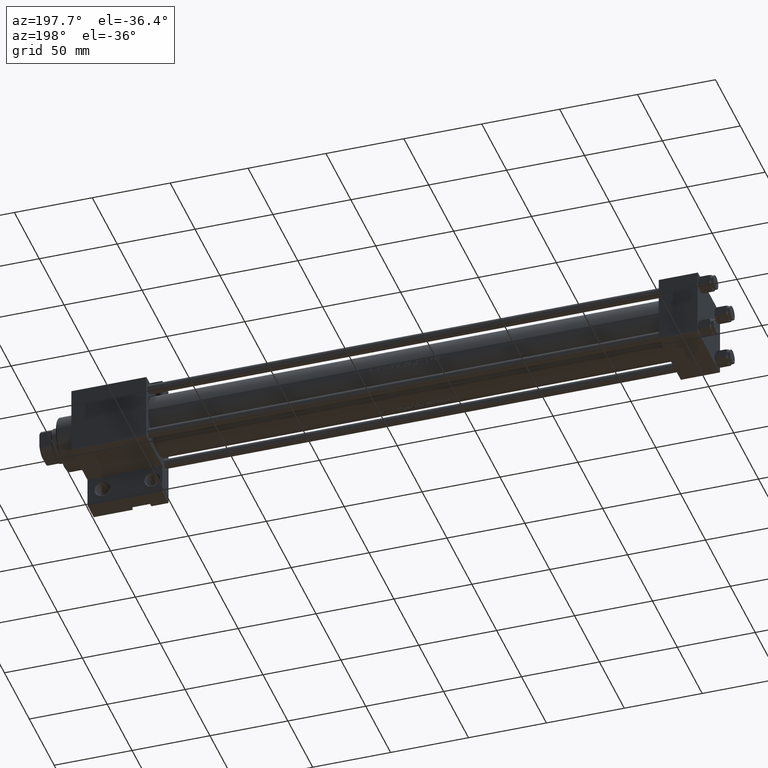
[diagram: clean part render]
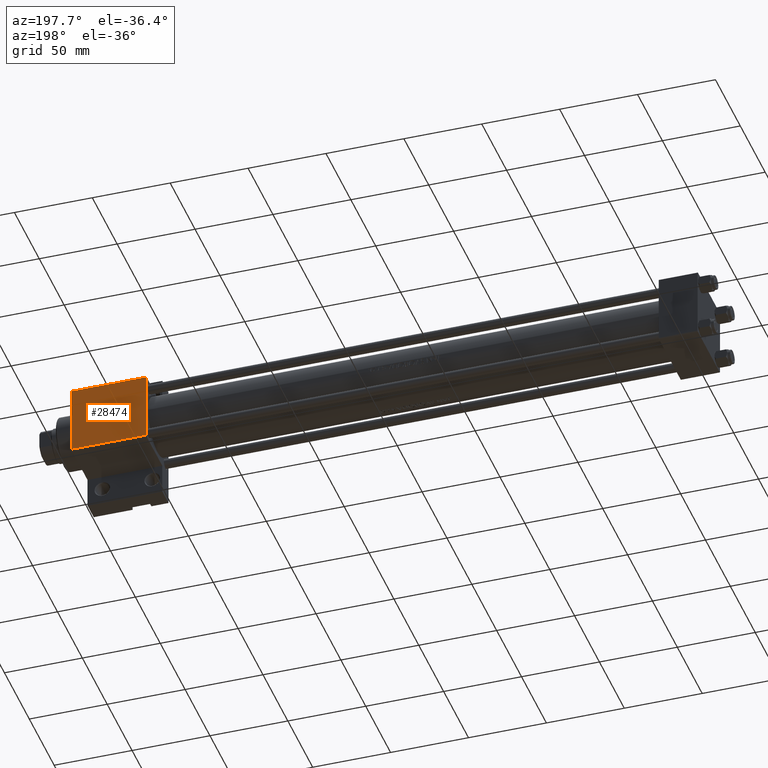
[diagram: same view with one face highlighted and labeled with its STEP entity id]
A machine part, auxiliary view. The second image highlights one B-rep face of the part: STEP entity #28474.
In plain terms, the highlighted planar face has unit normal (0, -1, -0).
Its self-contained STEP definition (entity closure, byte-faithful):
#106 = VERTEX_POINT ( 'NONE', #18790 ) ;
#172 = DIRECTION ( 'NONE',  ( -1.000000000000000000, 0.000000000000000000, 0.000000000000000000 ) ) ;
#437 = ORIENTED_EDGE ( 'NONE', *, *, #23605, .T. ) ;
#560 = VECTOR ( 'NONE', #2728, 1000.000000000000000 ) ;
#2728 = DIRECTION ( 'NONE',  ( 1.000000000000000000, 0.000000000000000000, 0.000000000000000000 ) ) ;
#3270 = ORIENTED_EDGE ( 'NONE', *, *, #29057, .T. ) ;
#3442 = CARTESIAN_POINT ( 'NONE',  ( 402.0000000000000000, -21.99999999999993960, 22.49999999999999289 ) ) ;
#3792 = CARTESIAN_POINT ( 'NONE',  ( 354.0000000000000568, 21.99999999999994671, 22.50000000000000355 ) ) ;
#6276 = PLANE ( 'NONE',  #6714 ) ;
#6714 = AXIS2_PLACEMENT_3D ( 'NONE', #9670, #25351, #17155 ) ;
#7698 = CARTESIAN_POINT ( 'NONE',  ( 402.0000000000000000, 21.99999999999994671, 22.50000000000000355 ) ) ;
#9670 = CARTESIAN_POINT ( 'NONE',  ( 402.0000000000000000, 22.50000000000000355, 22.50000000000000355 ) ) ;
#9685 = CARTESIAN_POINT ( 'NONE',  ( 354.0000000000000568, 21.99999999999994671, 22.50000000000000355 ) ) ;
#10561 = LINE ( 'NONE', #3792, #38531 ) ;
#13337 = DIRECTION ( 'NONE',  ( 0.000000000000000000, -1.000000000000000000, -2.312964634635742957E-16 ) ) ;
#16610 = VERTEX_POINT ( 'NONE', #9685 ) ;
#17155 = DIRECTION ( 'NONE',  ( 0.000000000000000000, 1.000000000000000000, 2.312964634635742957E-16 ) ) ;
#17905 = LINE ( 'NONE', #29239, #34805 ) ;
#18790 = CARTESIAN_POINT ( 'NONE',  ( 402.0000000000000000, -21.99999999999992539, 22.49999999999999289 ) ) ;
#19697 = VECTOR ( 'NONE', #13337, 1000.000000000000000 ) ;
#20364 = CARTESIAN_POINT ( 'NONE',  ( 354.0000000000000568, 22.50000000000000355, 22.50000000000000355 ) ) ;
#21143 = EDGE_LOOP ( 'NONE', ( #42993, #39370, #437, #3270 ) ) ;
#23605 = EDGE_CURVE ( 'NONE', #16610, #32750, #28058, .T. ) ;
#25351 = DIRECTION ( 'NONE',  ( 0.000000000000000000, 2.312964634635742957E-16, -1.000000000000000000 ) ) ;
#28058 = LINE ( 'NONE', #20364, #19697 ) ;
#28474 = ADVANCED_FACE ( 'NONE', ( #28480 ), #6276, .F. ) ;
#28480 = FACE_OUTER_BOUND ( 'NONE', #21143, .T. ) ;
#29057 = EDGE_CURVE ( 'NONE', #32750, #106, #46648, .T. ) ;
#29239 = CARTESIAN_POINT ( 'NONE',  ( 402.0000000000000000, 22.50000000000000355, 22.50000000000000355 ) ) ;
#32065 = VERTEX_POINT ( 'NONE', #7698 ) ;
#32750 = VERTEX_POINT ( 'NONE', #43401 ) ;
#34805 = VECTOR ( 'NONE', #39847, 1000.000000000000000 ) ;
#38531 = VECTOR ( 'NONE', #172, 1000.000000000000000 ) ;
#39370 = ORIENTED_EDGE ( 'NONE', *, *, #44757, .T. ) ;
#39847 = DIRECTION ( 'NONE',  ( 0.000000000000000000, -1.000000000000000000, -2.312964634635742957E-16 ) ) ;
#40726 = EDGE_CURVE ( 'NONE', #32065, #106, #17905, .T. ) ;
#42993 = ORIENTED_EDGE ( 'NONE', *, *, #40726, .F. ) ;
#43401 = CARTESIAN_POINT ( 'NONE',  ( 354.0000000000000568, -21.99999999999992539, 22.49999999999999289 ) ) ;
#44757 = EDGE_CURVE ( 'NONE', #32065, #16610, #10561, .T. ) ;
#46648 = LINE ( 'NONE', #3442, #560 ) ;